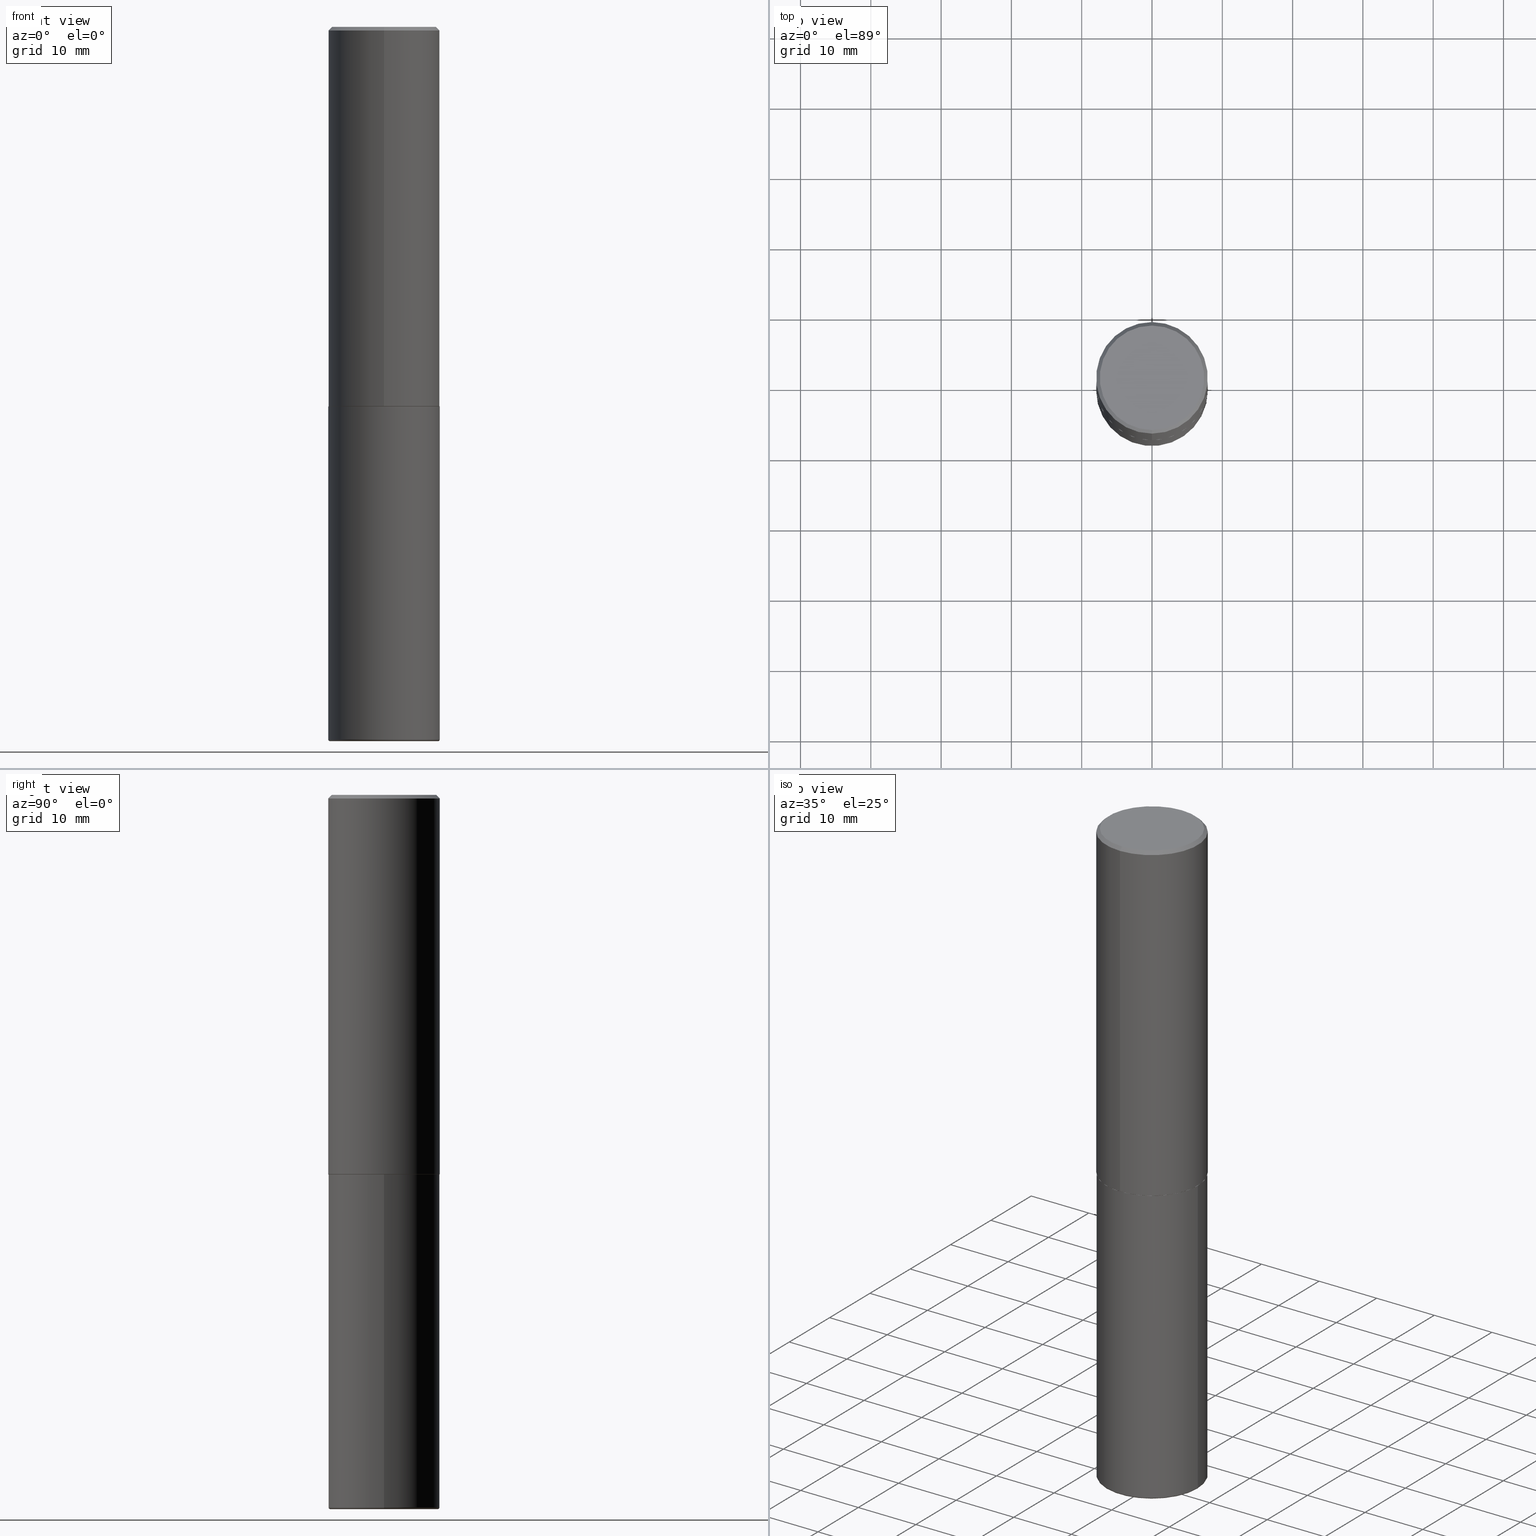
[diagram: canonical four-view strip — front | top / right | iso, engineering-drawing reading convention]
A machine part, canonical four-view strip (front | top / right | iso — engineering-drawing reading convention). The complete STEP part file that produces these views, byte-faithful:
ISO-10303-21;
HEADER;
FILE_DESCRIPTION (( 'STEP AP203' ),
    '1' );
FILE_NAME ('37577.STEP',
    '2024-03-02T04:44:09',
    ( '' ),
    ( '' ),
    'SwSTEP 2.0',
    'SolidWorks 2023',
    '' );
FILE_SCHEMA (( 'CONFIG_CONTROL_DESIGN' ));
ENDSEC;

DATA;
#1 = CIRCLE ( 'NONE', #194, 0.3025000000000000466 ) ;
#2 = APPROVAL_STATUS ( 'not_yet_approved' ) ;
#3 = ADVANCED_FACE ( 'NONE', ( #122 ), #296, .T. ) ;
#4 = FACE_OUTER_BOUND ( 'NONE', #10, .T. ) ;
#5 = PERSON_AND_ORGANIZATION ( #160, #276 ) ;
#6 = EDGE_CURVE ( 'NONE', #314, #68, #126, .T. ) ;
#7 = CIRCLE ( 'NONE', #289, 0.009999999999999825001 ) ;
#8 = AXIS2_PLACEMENT_3D ( 'NONE', #133, #207, #143 ) ;
#9 = APPROVAL_DATE_TIME ( #187, #101 ) ;
#10 = EDGE_LOOP ( 'NONE', ( #112, #359 ) ) ;
#11 = ORIENTED_EDGE ( 'NONE', *, *, #205, .T. ) ;
#12 = ADVANCED_FACE ( 'NONE', ( #352 ), #262, .T. ) ;
#13 = AXIS2_PLACEMENT_3D ( 'NONE', #30, #386, #213 ) ;
#14 = ORIENTED_EDGE ( 'NONE', *, *, #407, .T. ) ;
#15 = AXIS2_PLACEMENT_3D ( 'NONE', #305, #44, #166 ) ;
#16 = CARTESIAN_POINT ( 'NONE',  ( -2.075300644325887493E-15, -0.2924999999999999822, 1.030311686326234990E-15 ) ) ;
#17 = CARTESIAN_POINT ( 'NONE',  ( 2.213340621892763743E-15, 0.3114999999999925606, -2.125000000000000888 ) ) ;
#18 = EDGE_CURVE ( 'NONE', #373, #104, #183, .T. ) ;
#19 = DIRECTION ( 'NONE',  ( 5.024295867788576727E-15, 0.7071067811866224018, 0.7071067811864726327 ) ) ;
#20 = AXIS2_PLACEMENT_3D ( 'NONE', #368, #56, #301 ) ;
#21 = DIRECTION ( 'NONE',  ( -2.444852431726452894E-29, 3.492364022149836358E-15, 1.000000000000000000 ) ) ;
#22 = ORIENTED_EDGE ( 'NONE', *, *, #308, .F. ) ;
#23 = DIRECTION ( 'NONE',  ( 1.000000000000000000, -6.982962677686266711E-15, 4.876176775795936353E-29 ) ) ;
#24 = LINE ( 'NONE', #141, #409 ) ;
#25 = EDGE_LOOP ( 'NONE', ( #238, #58 ) ) ;
#26 = DIRECTION ( 'NONE',  ( -6.982962677686265922E-15, -1.000000000000000000, 3.496765431890253764E-15 ) ) ;
#27 = PLANE ( 'NONE',  #156 ) ;
#28 = PLANE ( 'NONE',  #90 ) ;
#29 = AXIS2_PLACEMENT_3D ( 'NONE', #190, #311, #184 ) ;
#30 = CARTESIAN_POINT ( 'NONE',  ( 4.889704863452922148E-31, -6.984728044299695791E-17, -0.02000000000000006981 ) ) ;
#31 = PERSON_AND_ORGANIZATION ( #160, #276 ) ;
#32 = FACE_OUTER_BOUND ( 'NONE', #362, .T. ) ;
#33 = COORDINATED_UNIVERSAL_TIME_OFFSET ( 5, 0, .BEHIND. ) ;
#34 = ORIENTED_EDGE ( 'NONE', *, *, #170, .F. ) ;
#35 = APPROVAL_STATUS ( 'not_yet_approved' ) ;
#36 = LOCAL_TIME ( 23, 44, 9.000000000000000000, #319 ) ;
#37 = VECTOR ( 'NONE', #215, 39.37007874015748143 ) ;
#38 = APPLICATION_CONTEXT ( 'configuration controlled 3d designs of mechanical parts and assemblies' ) ;
#39 = MANIFOLD_SOLID_BREP ( 'Body-Move/Copy2[2]', #285 ) ;
#40 = ORIENTED_EDGE ( 'NONE', *, *, #369, .T. ) ;
#41 = EDGE_LOOP ( 'NONE', ( #200, #211, #198, #34 ) ) ;
#42 = EDGE_LOOP ( 'NONE', ( #155, #340, #250, #282 ) ) ;
#43 = AXIS2_PLACEMENT_3D ( 'NONE', #270, #21, #138 ) ;
#44 = DIRECTION ( 'NONE',  ( -2.445468806185136597E-29, 3.491481338843145583E-15, 1.000000000000000000 ) ) ;
#45 = CARTESIAN_POINT ( 'NONE',  ( 9.757420536678694842E-29, -1.393101054198414910E-14, -3.989999999999999769 ) ) ;
#46 = DIRECTION ( 'NONE',  ( -2.445468806185136597E-29, 3.491481338843145583E-15, 1.000000000000000000 ) ) ;
#47 = DIRECTION ( 'NONE',  ( 1.000000000000000000, -6.982962677686268288E-15, 0.000000000000000000 ) ) ;
#48 = DIRECTION ( 'NONE',  ( -2.445468806185136597E-29, 3.491481338843145583E-15, 1.000000000000000000 ) ) ;
#49 = VECTOR ( 'NONE', #298, 39.37007874015748143 ) ;
#50 = EDGE_LOOP ( 'NONE', ( #87, #102 ) ) ;
#51 = DIRECTION ( 'NONE',  ( 6.982962677686265922E-15, 1.000000000000000000, -3.492364022149836358E-15 ) ) ;
#52 = DIRECTION ( 'NONE',  ( 4.937700262164541731E-15, 0.7071067811865442421, -0.7071067811865507924 ) ) ;
#53 = ORIENTED_EDGE ( 'NONE', *, *, #103, .T. ) ;
#54 = DIMENSIONAL_EXPONENTS ( 1.000000000000000000, 0.000000000000000000, 0.000000000000000000, 0.000000000000000000, 0.000000000000000000, 0.000000000000000000, 0.000000000000000000 ) ;
#55 = CC_DESIGN_PERSON_AND_ORGANIZATION_ASSIGNMENT ( #66, #281, ( #224 ) ) ;
#56 = DIRECTION ( 'NONE',  ( -2.444852431726452333E-29, 3.492364022149836358E-15, 1.000000000000000000 ) ) ;
#57 = CARTESIAN_POINT ( 'NONE',  ( 2.216893335571564642E-15, 0.3114999999999925606, -2.125000000000000888 ) ) ;
#58 = ORIENTED_EDGE ( 'NONE', *, *, #88, .T. ) ;
#59 = CARTESIAN_POINT ( 'NONE',  ( -2.150299018297948745E-46, 3.071607443834507134E-32, 8.795209847407834549E-18 ) ) ;
#60 = ADVANCED_FACE ( 'NONE', ( #4 ), #28, .T. ) ;
#61 = DIRECTION ( 'NONE',  ( -6.982962677686265922E-15, -1.000000000000000000, 3.507991003100177457E-15 ) ) ;
#62 = COORDINATED_UNIVERSAL_TIME_OFFSET ( 5, 0, .BEHIND. ) ;
#63 = CARTESIAN_POINT ( 'NONE',  ( -2.143905624303602824E-15, -0.3125000000000000555, -0.01999999999999897693 ) ) ;
#64 = EDGE_CURVE ( 'NONE', #267, #68, #146, .T. ) ;
#65 = AXIS2_PLACEMENT_3D ( 'NONE', #208, #136, #210 ) ;
#66 = PERSON_AND_ORGANIZATION ( #160, #276 ) ;
#67 = CC_DESIGN_APPROVAL ( #150, ( #318 ) ) ;
#68 = VERTEX_POINT ( 'NONE', #94 ) ;
#69 = VECTOR ( 'NONE', #19, 39.37007874015748143 ) ;
#70 = AXIS2_PLACEMENT_3D ( 'NONE', #235, #203, #398 ) ;
#71 = ORIENTED_EDGE ( 'NONE', *, *, #300, .T. ) ;
#72 = ORIENTED_EDGE ( 'NONE', *, *, #237, .F. ) ;
#73 = ORIENTED_EDGE ( 'NONE', *, *, #369, .F. ) ;
#74 = CARTESIAN_POINT ( 'NONE',  ( 0.000000000000000000, 0.000000000000000000, 0.000000000000000000 ) ) ;
#75 = AXIS2_PLACEMENT_3D ( 'NONE', #412, #241, #212 ) ;
#76 = CIRCLE ( 'NONE', #243, 0.3125000000000002776 ) ;
#77 = CARTESIAN_POINT ( 'NONE',  ( 9.781875224740545266E-29, -1.396592535537258075E-14, -3.999999999999999556 ) ) ;
#78 = DIRECTION ( 'NONE',  ( -2.445468806185136597E-29, 3.491481338843145583E-15, 1.000000000000000000 ) ) ;
#79 = LINE ( 'NONE', #17, #69 ) ;
#80 = ORIENTED_EDGE ( 'NONE', *, *, #265, .F. ) ;
#81 = PRODUCT_DEFINITION_SHAPE ( 'NONE', 'NONE',  #224 ) ;
#82 = AXIS2_PLACEMENT_3D ( 'NONE', #74, #401, #23 ) ;
#83 = DIRECTION ( 'NONE',  ( -6.982962677686265133E-15, -1.000000000000000000, 3.492364022149836358E-15 ) ) ;
#84 = CARTESIAN_POINT ( 'NONE',  ( 5.196621213143414147E-29, -7.419397845041682046E-15, -2.124999999999999556 ) ) ;
#85 = CALENDAR_DATE ( 2024, 1, 3 ) ;
#86 = DIRECTION ( 'NONE',  ( -6.982962677686266711E-15, -1.000000000000000000, 3.491481338843145583E-15 ) ) ;
#87 = ORIENTED_EDGE ( 'NONE', *, *, #145, .F. ) ;
#88 = EDGE_CURVE ( 'NONE', #373, #299, #96, .T. ) ;
#89 = DIRECTION ( 'NONE',  ( 7.105427357601001859E-15, 1.000000000000000000, -3.491481338843145583E-15 ) ) ;
#90 = AXIS2_PLACEMENT_3D ( 'NONE', #252, #387, #414 ) ;
#91 = APPROVAL_ROLE ( '' ) ;
#92 = DIRECTION ( 'NONE',  ( -2.444852431726452894E-29, 3.492364022149836358E-15, 1.000000000000000000 ) ) ;
#93 = EDGE_CURVE ( 'NONE', #299, #373, #240, .T. ) ;
#94 = CARTESIAN_POINT ( 'NONE',  ( -0.3125000000000000000, -8.454758144262601705E-15, -2.124999999999999556 ) ) ;
#95 =( NAMED_UNIT ( * ) SI_UNIT ( $, .STERADIAN. ) SOLID_ANGLE_UNIT ( ) );
#96 = CIRCLE ( 'NONE', #115, 0.2924999999999999822 ) ;
#97 = APPLICATION_CONTEXT ( 'configuration controlled 3d designs of mechanical parts and assemblies' ) ;
#98 = ADVANCED_FACE ( 'NONE', ( #151 ), #191, .T. ) ;
#99 = VERTEX_POINT ( 'NONE', #247 ) ;
#100 = CIRCLE ( 'NONE', #249, 0.3125000000000000555 ) ;
#101 = APPROVAL ( #2, 'UNSPECIFIED' ) ;
#102 = ORIENTED_EDGE ( 'NONE', *, *, #181, .F. ) ;
#103 = EDGE_CURVE ( 'NONE', #201, #314, #209, .T. ) ;
#104 = VERTEX_POINT ( 'NONE', #312 ) ;
#105 = CARTESIAN_POINT ( 'NONE',  ( 2.220446049250340297E-15, 0.3124999999999928391, -2.124000000000000554 ) ) ;
#106 = AXIS2_PLACEMENT_3D ( 'NONE', #84, #346, #378 ) ;
#107 = CARTESIAN_POINT ( 'NONE',  ( 0.3125000000000000000, -1.611318637876110745E-14, -3.989999999999999769 ) ) ;
#108 = LENGTH_MEASURE_WITH_UNIT ( LENGTH_MEASURE( 0.02539999999999999897 ), #268 );
#109 = DIRECTION ( 'NONE',  ( -2.445468806185136877E-29, 3.491481338843145188E-15, 1.000000000000000000 ) ) ;
#110 = DIRECTION ( 'NONE',  ( -2.445468806185136597E-29, 3.491481338843145583E-15, 1.000000000000000000 ) ) ;
#111 = CARTESIAN_POINT ( 'NONE',  ( 5.195311417418712329E-29, -7.421273547068401324E-15, -2.124999999999999556 ) ) ;
#112 = ORIENTED_EDGE ( 'NONE', *, *, #254, .F. ) ;
#113 = DIRECTION ( 'NONE',  ( 2.444852431726452333E-29, -3.492364022149836358E-15, -1.000000000000000000 ) ) ;
#114 = CARTESIAN_POINT ( 'NONE',  ( 0.3025000000000000466, -1.607827156537267738E-14, -3.999999999999999556 ) ) ;
#115 = AXIS2_PLACEMENT_3D ( 'NONE', #119, #246, #382 ) ;
#116 = ORIENTED_EDGE ( 'NONE', *, *, #291, .F. ) ;
#117 = PERSON_AND_ORGANIZATION ( #160, #276 ) ;
#118 = DIRECTION ( 'NONE',  ( -1.000000000000000000, 6.982962677686265922E-15, -4.876176775795935793E-29 ) ) ;
#119 = CARTESIAN_POINT ( 'NONE',  ( -2.150299018297948745E-46, 3.071607443834507134E-32, 8.795209847407834549E-18 ) ) ;
#120 = CARTESIAN_POINT ( 'NONE',  ( 5.195311417418712329E-29, -7.421273547068401324E-15, -2.124999999999999556 ) ) ;
#121 = DATE_TIME_ROLE ( 'classification_date' ) ;
#122 = FACE_OUTER_BOUND ( 'NONE', #175, .T. ) ;
#123 = AXIS2_PLACEMENT_3D ( 'NONE', #337, #78, #306 ) ;
#124 = SECURITY_CLASSIFICATION_LEVEL ( 'unclassified' ) ;
#125 = ADVANCED_FACE ( 'NONE', ( #32 ), #255, .T. ) ;
#126 = LINE ( 'NONE', #343, #37 ) ;
#127 = AXIS2_PLACEMENT_3D ( 'NONE', #111, #178, #294 ) ;
#128 = ORIENTED_EDGE ( 'NONE', *, *, #64, .T. ) ;
#129 = ORIENTED_EDGE ( 'NONE', *, *, #6, .T. ) ;
#130 = AXIS2_PLACEMENT_3D ( 'NONE', #333, #376, #83 ) ;
#131 = VECTOR ( 'NONE', #375, 39.37007874015748143 ) ;
#132 = ORIENTED_EDGE ( 'NONE', *, *, #145, .T. ) ;
#133 = CARTESIAN_POINT ( 'NONE',  ( 0.000000000000000000, 0.000000000000000000, 0.000000000000000000 ) ) ;
#134 = DIRECTION ( 'NONE',  ( 1.000000000000000000, -6.982962677686261189E-15, 0.000000000000000000 ) ) ;
#135 = DIRECTION ( 'NONE',  ( 1.000000000000000000, -6.982962677686265922E-15, 4.883557194083112340E-29 ) ) ;
#136 = DIRECTION ( 'NONE',  ( -2.444852431726452894E-29, 3.492364022149836358E-15, 1.000000000000000000 ) ) ;
#137 = CYLINDRICAL_SURFACE ( 'NONE', #8, 0.3125000000000001665 ) ;
#138 = DIRECTION ( 'NONE',  ( -6.982962677686265922E-15, -1.000000000000000000, 3.496765431890253764E-15 ) ) ;
#139 = VERTEX_POINT ( 'NONE', #182 ) ;
#140 = CARTESIAN_POINT ( 'NONE',  ( -2.175192874099219874E-15, -0.3115000000000074376, -2.124999999999998668 ) ) ;
#141 = CARTESIAN_POINT ( 'NONE',  ( 2.182175836776958741E-15, 0.3124999999999999445, -0.02000000000000116268 ) ) ;
#142 = VERTEX_POINT ( 'NONE', #107 ) ;
#143 = DIRECTION ( 'NONE',  ( -6.982962677686265133E-15, -1.000000000000000000, 3.492364022149836358E-15 ) ) ;
#144 = CARTESIAN_POINT ( 'NONE',  ( 5.196621213143414147E-29, -7.419397845041682046E-15, -2.124999999999999556 ) ) ;
#145 = EDGE_CURVE ( 'NONE', #139, #223, #347, .T. ) ;
#146 = CIRCLE ( 'NONE', #106, 0.3125000000000000000 ) ;
#147 = VERTEX_POINT ( 'NONE', #230 ) ;
#148 = TOROIDAL_SURFACE ( 'NONE', #158, 0.3025000000000000466, 0.009999999999999825001 ) ;
#149 = PERSON_AND_ORGANIZATION_ROLE ( 'creator' ) ;
#150 = APPROVAL ( #279, 'UNSPECIFIED' ) ;
#151 = FACE_OUTER_BOUND ( 'NONE', #42, .T. ) ;
#152 = APPROVAL_DATE_TIME ( #411, #150 ) ;
#153 = CARTESIAN_POINT ( 'NONE',  ( 5.195311417418712329E-29, -7.421273547068401324E-15, -2.124999999999999556 ) ) ;
#154 = DATE_AND_TIME ( #85, #231 ) ;
#155 = ORIENTED_EDGE ( 'NONE', *, *, #18, .F. ) ;
#156 = AXIS2_PLACEMENT_3D ( 'NONE', #144, #274, #118 ) ;
#157 = APPROVAL_ROLE ( '' ) ;
#158 = AXIS2_PLACEMENT_3D ( 'NONE', #264, #110, #135 ) ;
#159 = CLOSED_SHELL ( 'NONE', ( #400, #325, #228, #351, #413, #60 ) ) ;
#160 = PERSON ( 'UNSPECIFIED', 'UNSPECIFIED', 'UNSPECIFIED', ('UNSPECIFIED'), ('UNSPECIFIED'), ('UNSPECIFIED') ) ;
#161 = EDGE_CURVE ( 'NONE', #314, #142, #100, .T. ) ;
#162 = EDGE_LOOP ( 'NONE', ( #128, #164 ) ) ;
#163 = ORIENTED_EDGE ( 'NONE', *, *, #6, .F. ) ;
#164 = ORIENTED_EDGE ( 'NONE', *, *, #222, .T. ) ;
#165 = VECTOR ( 'NONE', #109, 39.37007874015748143 ) ;
#166 = DIRECTION ( 'NONE',  ( 1.000000000000000000, -6.982962677686266711E-15, 4.876176775795936353E-29 ) ) ;
#167 = CARTESIAN_POINT ( 'NONE',  ( 5.195311417418712329E-29, -7.421273547068401324E-15, -2.124999999999999556 ) ) ;
#168 = DIRECTION ( 'NONE',  ( 1.000000000000000000, -6.982962677686268288E-15, 0.000000000000000000 ) ) ;
#169 = FACE_OUTER_BOUND ( 'NONE', #162, .T. ) ;
#170 = EDGE_CURVE ( 'NONE', #147, #104, #172, .T. ) ;
#171 = LINE ( 'NONE', #140, #323 ) ;
#172 = CIRCLE ( 'NONE', #75, 0.3125000000000000000 ) ;
#173 = CARTESIAN_POINT ( 'NONE',  ( -0.3125000000000000000, -1.171056449273383602E-14, -3.989999999999999769 ) ) ;
#174 = MANIFOLD_SOLID_BREP ( 'Body-Move/Copy2[1]', #159 ) ;
#175 = EDGE_LOOP ( 'NONE', ( #392, #286, #334, #80 ) ) ;
#176 = UNCERTAINTY_MEASURE_WITH_UNIT (LENGTH_MEASURE( 1.000000000000000082E-05 ), #233, 'distance_accuracy_value', 'NONE');
#177 = DIRECTION ( 'NONE',  ( -2.444852431726452894E-29, 3.492364022149836358E-15, 1.000000000000000000 ) ) ;
#178 = DIRECTION ( 'NONE',  ( -2.444852431726452894E-29, 3.492364022149836358E-15, 1.000000000000000000 ) ) ;
#179 = ORIENTED_EDGE ( 'NONE', *, *, #328, .F. ) ;
#180 = CYLINDRICAL_SURFACE ( 'NONE', #15, 0.3125000000000000000 ) ;
#181 = EDGE_CURVE ( 'NONE', #223, #139, #321, .T. ) ;
#182 = CARTESIAN_POINT ( 'NONE',  ( -2.175192874099219874E-15, -0.3115000000000074376, -2.124999999999998668 ) ) ;
#183 = LINE ( 'NONE', #63, #335 ) ;
#184 = DIRECTION ( 'NONE',  ( 1.000000000000000000, 0.000000000000000000, 0.000000000000000000 ) ) ;
#185 = DIRECTION ( 'NONE',  ( -2.444852431726452894E-29, 3.492364022149836358E-15, 1.000000000000000000 ) ) ;
#186 = DIRECTION ( 'NONE',  ( -1.000000000000000000, 7.105427357601049190E-15, 0.000000000000000000 ) ) ;
#187 = DATE_AND_TIME ( #350, #349 ) ;
#188 = DIRECTION ( 'NONE',  ( -4.851104656540957964E-15, -0.7071067811865491270, -0.7071067811865459074 ) ) ;
#189 = CC_DESIGN_DATE_AND_TIME_ASSIGNMENT ( #154, #248, ( #224 ) ) ;
#190 = CARTESIAN_POINT ( 'NONE',  ( 0.000000000000000000, 0.000000000000000000, 0.000000000000000000 ) ) ;
#191 = CONICAL_SURFACE ( 'NONE', #327, 0.3125000000000000000, 0.7853981633974471688 ) ;
#192 = APPROVAL_ROLE ( '' ) ;
#193 = CIRCLE ( 'NONE', #356, 0.3125000000000000555 ) ;
#194 = AXIS2_PLACEMENT_3D ( 'NONE', #245, #48, #332 ) ;
#195 = VERTEX_POINT ( 'NONE', #114 ) ;
#196 = CC_DESIGN_APPROVAL ( #199, ( #224 ) ) ;
#197 = ADVANCED_FACE ( 'NONE', ( #367 ), #372, .T. ) ;
#198 = ORIENTED_EDGE ( 'NONE', *, *, #328, .T. ) ;
#199 = APPROVAL ( #35, 'UNSPECIFIED' ) ;
#200 = ORIENTED_EDGE ( 'NONE', *, *, #315, .F. ) ;
#201 = VERTEX_POINT ( 'NONE', #236 ) ;
#202 = AXIS2_PLACEMENT_3D ( 'NONE', #59, #185, #309 ) ;
#203 = DIRECTION ( 'NONE',  ( -2.445468806185136597E-29, 3.491481338843145583E-15, 1.000000000000000000 ) ) ;
#204 = FACE_OUTER_BOUND ( 'NONE', #50, .T. ) ;
#205 = EDGE_CURVE ( 'NONE', #223, #348, #79, .T. ) ;
#206 = DIRECTION ( 'NONE',  ( -2.445468806185136597E-29, 3.491481338843145583E-15, 1.000000000000000000 ) ) ;
#207 = DIRECTION ( 'NONE',  ( -2.444852431726452894E-29, 3.492364022149836358E-15, 1.000000000000000000 ) ) ;
#208 = CARTESIAN_POINT ( 'NONE',  ( 4.889704863452922148E-31, -6.984728044299695791E-17, -0.02000000000000006981 ) ) ;
#209 = CIRCLE ( 'NONE', #393, 0.009999999999999825001 ) ;
#210 = DIRECTION ( 'NONE',  ( -6.982962677686265133E-15, -1.000000000000000000, 3.496765431890256920E-15 ) ) ;
#211 = ORIENTED_EDGE ( 'NONE', *, *, #320, .T. ) ;
#212 = DIRECTION ( 'NONE',  ( -6.982962677686265133E-15, -1.000000000000000000, 3.496765431890256920E-15 ) ) ;
#213 = DIRECTION ( 'NONE',  ( 6.982962677686265133E-15, 1.000000000000000000, -3.496765431890256920E-15 ) ) ;
#214 = PERSON_AND_ORGANIZATION ( #160, #276 ) ;
#215 = DIRECTION ( 'NONE',  ( -2.445468806185136877E-29, 3.491481338843145188E-15, 1.000000000000000000 ) ) ;
#216 = CARTESIAN_POINT ( 'NONE',  ( 4.889704863452922148E-31, -6.984728044299695791E-17, -0.02000000000000006981 ) ) ;
#217 = COORDINATED_UNIVERSAL_TIME_OFFSET ( 5, 0, .BEHIND. ) ;
#218 = ORIENTED_EDGE ( 'NONE', *, *, #222, .F. ) ;
#219 = APPLICATION_PROTOCOL_DEFINITION ( 'international standard', 'config_control_design', 1994, #38 ) ;
#220 = CALENDAR_DATE ( 2024, 1, 3 ) ;
#221 = CIRCLE ( 'NONE', #43, 0.3125000000000002776 ) ;
#222 = EDGE_CURVE ( 'NONE', #68, #267, #364, .T. ) ;
#223 = VERTEX_POINT ( 'NONE', #57 ) ;
#224 = PRODUCT_DEFINITION ( 'UNKNOWN', '', #318, #304 ) ;
#225 = ORIENTED_EDGE ( 'NONE', *, *, #308, .T. ) ;
#226 = EDGE_LOOP ( 'NONE', ( #14, #129, #258, #22 ) ) ;
#227 = FACE_OUTER_BOUND ( 'NONE', #226, .T. ) ;
#228 = ADVANCED_FACE ( 'NONE', ( #169 ), #27, .F. ) ;
#229 = CARTESIAN_POINT ( 'NONE',  ( 9.757420536678694842E-29, -1.393101054198414910E-14, -3.989999999999999769 ) ) ;
#230 = CARTESIAN_POINT ( 'NONE',  ( 2.182175836776958741E-15, 0.3124999999999999445, -0.02000000000000116268 ) ) ;
#231 = LOCAL_TIME ( 23, 44, 9.000000000000000000, #33 ) ;
#232 = CC_DESIGN_DATE_AND_TIME_ASSIGNMENT ( #415, #121, ( #251 ) ) ;
#233 =( CONVERSION_BASED_UNIT ( 'INCH', #108 ) LENGTH_UNIT ( ) NAMED_UNIT ( #54 ) );
#234 = LINE ( 'NONE', #370, #49 ) ;
#235 = CARTESIAN_POINT ( 'NONE',  ( 9.757420536678694842E-29, -1.393101054198414910E-14, -3.989999999999999769 ) ) ;
#236 = CARTESIAN_POINT ( 'NONE',  ( -0.3025000000000000466, -1.176354903621605689E-14, -3.999999999999999556 ) ) ;
#237 = EDGE_CURVE ( 'NONE', #104, #147, #374, .T. ) ;
#238 = ORIENTED_EDGE ( 'NONE', *, *, #93, .T. ) ;
#239 = CARTESIAN_POINT ( 'NONE',  ( 5.192866564986985411E-29, -7.417781183046251262E-15, -2.123999999999999666 ) ) ;
#240 = CIRCLE ( 'NONE', #202, 0.2924999999999999822 ) ;
#241 = DIRECTION ( 'NONE',  ( -2.444852431726452894E-29, 3.492364022149836358E-15, 1.000000000000000000 ) ) ;
#242 = ORIENTED_EDGE ( 'NONE', *, *, #315, .T. ) ;
#243 = AXIS2_PLACEMENT_3D ( 'NONE', #239, #177, #26 ) ;
#244 = PERSON_AND_ORGANIZATION ( #160, #276 ) ;
#245 = CARTESIAN_POINT ( 'NONE',  ( 9.781875224740545266E-29, -1.396592535537258075E-14, -3.999999999999999556 ) ) ;
#246 = DIRECTION ( 'NONE',  ( -2.444852431726452894E-29, 3.492364022149836358E-15, 1.000000000000000000 ) ) ;
#247 = CARTESIAN_POINT ( 'NONE',  ( -2.182175836776908254E-15, -0.3125000000000077161, -2.123999999999998334 ) ) ;
#248 = DATE_TIME_ROLE ( 'creation_date' ) ;
#249 = AXIS2_PLACEMENT_3D ( 'NONE', #45, #330, #47 ) ;
#250 = ORIENTED_EDGE ( 'NONE', *, *, #265, .T. ) ;
#251 = SECURITY_CLASSIFICATION ( '', '', #124 ) ;
#252 = CARTESIAN_POINT ( 'NONE',  ( 1.482687160976392448E-28, -6.741203388657175081E-15, -4.000000000000000000 ) ) ;
#253 = APPROVAL_DATE_TIME ( #353, #199 ) ;
#254 = EDGE_CURVE ( 'NONE', #195, #201, #1, .T. ) ;
#255 = CONICAL_SURFACE ( 'NONE', #355, 0.3114999999999999991, 0.7853981633975507526 ) ;
#256 = APPROVAL_PERSON_ORGANIZATION ( #31, #199, #157 ) ;
#257 = ORIENTED_EDGE ( 'NONE', *, *, #320, .F. ) ;
#258 = ORIENTED_EDGE ( 'NONE', *, *, #64, .F. ) ;
#259 = ORIENTED_EDGE ( 'NONE', *, *, #254, .T. ) ;
#260 = FACE_OUTER_BOUND ( 'NONE', #397, .T. ) ;
#261 = DIRECTION ( 'NONE',  ( -2.444852431726452894E-29, 3.492364022149836358E-15, 1.000000000000000000 ) ) ;
#262 = CONICAL_SURFACE ( 'NONE', #385, 0.3114999999999999991, 0.7853981633975507526 ) ;
#263 = LINE ( 'NONE', #302, #165 ) ;
#264 = CARTESIAN_POINT ( 'NONE',  ( 9.757420536678694842E-29, -1.393101054198414910E-14, -3.989999999999999769 ) ) ;
#265 = EDGE_CURVE ( 'NONE', #299, #147, #24, .T. ) ;
#266 = FACE_OUTER_BOUND ( 'NONE', #360, .T. ) ;
#267 = VERTEX_POINT ( 'NONE', #381 ) ;
#268 =( LENGTH_UNIT ( ) NAMED_UNIT ( * ) SI_UNIT ( $, .METRE. ) );
#269 = CC_DESIGN_PERSON_AND_ORGANIZATION_ASSIGNMENT ( #244, #380, ( #318 ) ) ;
#270 = CARTESIAN_POINT ( 'NONE',  ( 5.192866564986985411E-29, -7.417781183046251262E-15, -2.123999999999999666 ) ) ;
#271 = ORIENTED_EDGE ( 'NONE', *, *, #103, .F. ) ;
#272 = CALENDAR_DATE ( 2024, 1, 3 ) ;
#273 = TOROIDAL_SURFACE ( 'NONE', #70, 0.3025000000000000466, 0.009999999999999825001 ) ;
#274 = DIRECTION ( 'NONE',  ( 2.438088387897960049E-29, -3.491481338843145188E-15, -1.000000000000000000 ) ) ;
#275 = ORIENTED_EDGE ( 'NONE', *, *, #161, .T. ) ;
#276 = ORGANIZATION ( 'UNSPECIFIED', 'UNSPECIFIED', '' ) ;
#277 = PERSON_AND_ORGANIZATION ( #160, #276 ) ;
#278 = DIRECTION ( 'NONE',  ( 2.444852431726452894E-29, -3.492364022149836358E-15, -1.000000000000000000 ) ) ;
#279 = APPROVAL_STATUS ( 'not_yet_approved' ) ;
#280 = DIRECTION ( 'NONE',  ( -2.444852431726452894E-29, 3.492364022149836358E-15, 1.000000000000000000 ) ) ;
#281 = PERSON_AND_ORGANIZATION_ROLE ( 'creator' ) ;
#282 = ORIENTED_EDGE ( 'NONE', *, *, #170, .T. ) ;
#283 = APPROVAL_PERSON_ORGANIZATION ( #384, #101, #91 ) ;
#284 = COORDINATED_UNIVERSAL_TIME_OFFSET ( 5, 0, .BEHIND. ) ;
#285 = CLOSED_SHELL ( 'NONE', ( #125, #197, #3, #98, #391, #12, #345, #357 ) ) ;
#286 = ORIENTED_EDGE ( 'NONE', *, *, #18, .T. ) ;
#287 = SHAPE_DEFINITION_REPRESENTATION ( #81, #410 ) ;
#288 = EDGE_LOOP ( 'NONE', ( #303, #242, #72, #179 ) ) ;
#289 = AXIS2_PLACEMENT_3D ( 'NONE', #402, #86, #134 ) ;
#290 = ORIENTED_EDGE ( 'NONE', *, *, #181, .T. ) ;
#291 = EDGE_CURVE ( 'NONE', #195, #142, #7, .T. ) ;
#292 = CC_DESIGN_SECURITY_CLASSIFICATION ( #251, ( #318 ) ) ;
#293 = DIRECTION ( 'NONE',  ( -4.937700262165053702E-15, -0.7071067811866175168, 0.7071067811864775177 ) ) ;
#294 = DIRECTION ( 'NONE',  ( -6.982962677686265922E-15, -1.000000000000000000, 3.507991003100177457E-15 ) ) ;
#295 = DIRECTION ( 'NONE',  ( 1.000000000000000000, -6.982962677686265922E-15, 0.000000000000000000 ) ) ;
#296 = CONICAL_SURFACE ( 'NONE', #13, 0.3125000000000000000, 0.7853981633974471688 ) ;
#297 =( NAMED_UNIT ( * ) PLANE_ANGLE_UNIT ( ) SI_UNIT ( $, .RADIAN. ) );
#298 = DIRECTION ( 'NONE',  ( -2.444852431726452614E-29, 3.492364022149836358E-15, 1.000000000000000000 ) ) ;
#299 = VERTEX_POINT ( 'NONE', #399 ) ;
#300 = EDGE_CURVE ( 'NONE', #201, #195, #389, .T. ) ;
#301 = DIRECTION ( 'NONE',  ( -6.982962677686265922E-15, -1.000000000000000000, 3.492364022149836358E-15 ) ) ;
#302 = CARTESIAN_POINT ( 'NONE',  ( 0.3125000000000000000, -2.182175836776958347E-15, 1.523805242436230075E-29 ) ) ;
#303 = ORIENTED_EDGE ( 'NONE', *, *, #379, .T. ) ;
#304 = DESIGN_CONTEXT ( 'detailed design', #97, 'design' ) ;
#305 = CARTESIAN_POINT ( 'NONE',  ( 0.000000000000000000, 0.000000000000000000, 0.000000000000000000 ) ) ;
#306 = DIRECTION ( 'NONE',  ( 1.000000000000000000, -6.982962677686265133E-15, 0.000000000000000000 ) ) ;
#307 = ORIENTED_EDGE ( 'NONE', *, *, #407, .F. ) ;
#308 = EDGE_CURVE ( 'NONE', #142, #267, #263, .T. ) ;
#309 = DIRECTION ( 'NONE',  ( -6.982962677686265133E-15, -1.000000000000000000, 3.492364022149836753E-15 ) ) ;
#310 = APPROVAL_PERSON_ORGANIZATION ( #214, #150, #192 ) ;
#311 = DIRECTION ( 'NONE',  ( 0.000000000000000000, 0.000000000000000000, 1.000000000000000000 ) ) ;
#312 = CARTESIAN_POINT ( 'NONE',  ( -2.143905624303602824E-15, -0.3125000000000000555, -0.01999999999999897693 ) ) ;
#313 = MECHANICAL_CONTEXT ( 'NONE', #38, 'mechanical' ) ;
#314 = VERTEX_POINT ( 'NONE', #173 ) ;
#315 = EDGE_CURVE ( 'NONE', #348, #147, #234, .T. ) ;
#316 = PERSON_AND_ORGANIZATION_ROLE ( 'design_owner' ) ;
#317 = AXIS2_PLACEMENT_3D ( 'NONE', #167, #261, #342 ) ;
#318 = PRODUCT_DEFINITION_FORMATION_WITH_SPECIFIED_SOURCE ( 'ANY', '', #338, .NOT_KNOWN. ) ;
#319 = COORDINATED_UNIVERSAL_TIME_OFFSET ( 5, 0, .BEHIND. ) ;
#320 = EDGE_CURVE ( 'NONE', #348, #99, #221, .T. ) ;
#321 = CIRCLE ( 'NONE', #127, 0.3114999999999999991 ) ;
#322 = EDGE_LOOP ( 'NONE', ( #405, #290, #40, #257 ) ) ;
#323 = VECTOR ( 'NONE', #293, 39.37007874015748143 ) ;
#324 = EDGE_LOOP ( 'NONE', ( #163, #275, #225, #218 ) ) ;
#325 = ADVANCED_FACE ( 'NONE', ( #266 ), #273, .T. ) ;
#326 = ORIENTED_EDGE ( 'NONE', *, *, #161, .F. ) ;
#327 = AXIS2_PLACEMENT_3D ( 'NONE', #216, #278, #416 ) ;
#328 = EDGE_CURVE ( 'NONE', #99, #104, #406, .T. ) ;
#329 = PLANE ( 'NONE',  #20 ) ;
#330 = DIRECTION ( 'NONE',  ( -2.445468806185136597E-29, 3.491481338843145583E-15, 1.000000000000000000 ) ) ;
#331 = FACE_OUTER_BOUND ( 'NONE', #324, .T. ) ;
#332 = DIRECTION ( 'NONE',  ( 1.000000000000000000, -6.982962677686265922E-15, 0.000000000000000000 ) ) ;
#333 = CARTESIAN_POINT ( 'NONE',  ( 0.000000000000000000, 0.000000000000000000, 0.000000000000000000 ) ) ;
#334 = ORIENTED_EDGE ( 'NONE', *, *, #237, .T. ) ;
#335 = VECTOR ( 'NONE', #188, 39.37007874015748143 ) ;
#336 = FACE_OUTER_BOUND ( 'NONE', #25, .T. ) ;
#337 = CARTESIAN_POINT ( 'NONE',  ( 5.196621213143414147E-29, -7.419397845041682046E-15, -2.124999999999999556 ) ) ;
#338 = PRODUCT ( '37577', '37577', '', ( #313 ) ) ;
#339 = AXIS2_PLACEMENT_3D ( 'NONE', #365, #113, #51 ) ;
#340 = ORIENTED_EDGE ( 'NONE', *, *, #93, .F. ) ;
#341 = CARTESIAN_POINT ( 'NONE',  ( -2.182175836776959136E-15, -0.3125000000000001665, 1.091363756921824478E-15 ) ) ;
#342 = DIRECTION ( 'NONE',  ( -6.982962677686265922E-15, -1.000000000000000000, 3.507991003100177457E-15 ) ) ;
#343 = CARTESIAN_POINT ( 'NONE',  ( -0.3125000000000000000, 2.220446049250313081E-15, -1.537167215704658232E-29 ) ) ;
#344 = CALENDAR_DATE ( 2024, 1, 3 ) ;
#345 = ADVANCED_FACE ( 'NONE', ( #204 ), #329, .F. ) ;
#346 = DIRECTION ( 'NONE',  ( -2.445468806185136597E-29, 3.491481338843145583E-15, 1.000000000000000000 ) ) ;
#347 = CIRCLE ( 'NONE', #317, 0.3114999999999999991 ) ;
#348 = VERTEX_POINT ( 'NONE', #105 ) ;
#349 = LOCAL_TIME ( 23, 44, 9.000000000000000000, #217 ) ;
#350 = CALENDAR_DATE ( 2024, 1, 3 ) ;
#351 = ADVANCED_FACE ( 'NONE', ( #331 ), #180, .T. ) ;
#352 = FACE_OUTER_BOUND ( 'NONE', #322, .T. ) ;
#353 = DATE_AND_TIME ( #220, #366 ) ;
#354 = CC_DESIGN_PERSON_AND_ORGANIZATION_ASSIGNMENT ( #117, #149, ( #318 ) ) ;
#355 = AXIS2_PLACEMENT_3D ( 'NONE', #153, #280, #418 ) ;
#356 = AXIS2_PLACEMENT_3D ( 'NONE', #229, #46, #168 ) ;
#357 = ADVANCED_FACE ( 'NONE', ( #336 ), #404, .F. ) ;
#358 = AXIS2_PLACEMENT_3D ( 'NONE', #77, #206, #295 ) ;
#359 = ORIENTED_EDGE ( 'NONE', *, *, #300, .F. ) ;
#360 = EDGE_LOOP ( 'NONE', ( #259, #53, #307, #116 ) ) ;
#361 = CC_DESIGN_PERSON_AND_ORGANIZATION_ASSIGNMENT ( #5, #316, ( #338 ) ) ;
#362 = EDGE_LOOP ( 'NONE', ( #132, #11, #408, #73 ) ) ;
#363 = CYLINDRICAL_SURFACE ( 'NONE', #82, 0.3125000000000000000 ) ;
#364 = CIRCLE ( 'NONE', #123, 0.3125000000000000000 ) ;
#365 = CARTESIAN_POINT ( 'NONE',  ( 2.042516583223232540E-15, 0.2924999999999999822, -1.017118871555123169E-15 ) ) ;
#366 = LOCAL_TIME ( 23, 44, 9.000000000000000000, #284 ) ;
#367 = FACE_OUTER_BOUND ( 'NONE', #288, .T. ) ;
#368 = CARTESIAN_POINT ( 'NONE',  ( 5.195311417418712329E-29, -7.421273547068401324E-15, -2.124999999999999556 ) ) ;
#369 = EDGE_CURVE ( 'NONE', #139, #99, #171, .T. ) ;
#370 = CARTESIAN_POINT ( 'NONE',  ( 2.220446049250313475E-15, 0.3125000000000001665, -1.091363756921824478E-15 ) ) ;
#371 = FACE_OUTER_BOUND ( 'NONE', #41, .T. ) ;
#372 = CYLINDRICAL_SURFACE ( 'NONE', #130, 0.3125000000000001665 ) ;
#373 = VERTEX_POINT ( 'NONE', #16 ) ;
#374 = CIRCLE ( 'NONE', #65, 0.3125000000000000000 ) ;
#375 = DIRECTION ( 'NONE',  ( -2.444852431726452614E-29, 3.492364022149836358E-15, 1.000000000000000000 ) ) ;
#376 = DIRECTION ( 'NONE',  ( -2.444852431726452894E-29, 3.492364022149836358E-15, 1.000000000000000000 ) ) ;
#377 = LOCAL_TIME ( 23, 44, 9.000000000000000000, #62 ) ;
#378 = DIRECTION ( 'NONE',  ( 1.000000000000000000, -6.982962677686265133E-15, 0.000000000000000000 ) ) ;
#379 = EDGE_CURVE ( 'NONE', #99, #348, #76, .T. ) ;
#380 = PERSON_AND_ORGANIZATION_ROLE ( 'design_supplier' ) ;
#381 = CARTESIAN_POINT ( 'NONE',  ( 0.3125000000000000000, -9.601573681818640393E-15, -2.124999999999999556 ) ) ;
#382 = DIRECTION ( 'NONE',  ( -6.982962677686265133E-15, -1.000000000000000000, 3.492364022149836753E-15 ) ) ;
#383 = CARTESIAN_POINT ( 'NONE',  ( -0.3025000000000000466, -1.178161876630984610E-14, -3.989999999999999769 ) ) ;
#384 = PERSON_AND_ORGANIZATION ( #160, #276 ) ;
#385 = AXIS2_PLACEMENT_3D ( 'NONE', #120, #92, #61 ) ;
#386 = DIRECTION ( 'NONE',  ( 2.444852431726452894E-29, -3.492364022149836358E-15, -1.000000000000000000 ) ) ;
#387 = DIRECTION ( 'NONE',  ( 2.438088387897960049E-29, -3.491481338843145188E-15, -1.000000000000000000 ) ) ;
#388 = APPLICATION_PROTOCOL_DEFINITION ( 'international standard', 'config_control_design', 1994, #97 ) ;
#389 = CIRCLE ( 'NONE', #358, 0.3025000000000000466 ) ;
#390 =( GEOMETRIC_REPRESENTATION_CONTEXT ( 3 ) GLOBAL_UNCERTAINTY_ASSIGNED_CONTEXT ( ( #176 ) ) GLOBAL_UNIT_ASSIGNED_CONTEXT ( ( #233, #297, #95 ) ) REPRESENTATION_CONTEXT ( 'NONE', 'WORKASPACE' ) );
#391 = ADVANCED_FACE ( 'NONE', ( #371 ), #137, .T. ) ;
#392 = ORIENTED_EDGE ( 'NONE', *, *, #88, .F. ) ;
#393 = AXIS2_PLACEMENT_3D ( 'NONE', #383, #89, #186 ) ;
#394 = ORIENTED_EDGE ( 'NONE', *, *, #291, .T. ) ;
#395 = CC_DESIGN_APPROVAL ( #101, ( #251 ) ) ;
#396 = PRODUCT_RELATED_PRODUCT_CATEGORY ( 'detail', '', ( #338 ) ) ;
#397 = EDGE_LOOP ( 'NONE', ( #271, #71, #394, #326 ) ) ;
#398 = DIRECTION ( 'NONE',  ( 1.000000000000000000, -6.982962677686265922E-15, 4.883557194083112340E-29 ) ) ;
#399 = CARTESIAN_POINT ( 'NONE',  ( 2.112346210000095838E-15, 0.2924999999999999822, -1.012721266631419361E-15 ) ) ;
#400 = ADVANCED_FACE ( 'NONE', ( #227 ), #363, .T. ) ;
#401 = DIRECTION ( 'NONE',  ( -2.445468806185136597E-29, 3.491481338843145583E-15, 1.000000000000000000 ) ) ;
#402 = CARTESIAN_POINT ( 'NONE',  ( 0.3025000000000000466, -1.604335675198424415E-14, -3.989999999999999769 ) ) ;
#403 = CC_DESIGN_PERSON_AND_ORGANIZATION_ASSIGNMENT ( #277, #417, ( #251 ) ) ;
#404 = PLANE ( 'NONE',  #339 ) ;
#405 = ORIENTED_EDGE ( 'NONE', *, *, #205, .F. ) ;
#406 = LINE ( 'NONE', #341, #131 ) ;
#407 = EDGE_CURVE ( 'NONE', #142, #314, #193, .T. ) ;
#408 = ORIENTED_EDGE ( 'NONE', *, *, #379, .F. ) ;
#409 = VECTOR ( 'NONE', #52, 39.37007874015748143 ) ;
#410 = ADVANCED_BREP_SHAPE_REPRESENTATION ( '37577', ( #174, #39, #29 ), #390 ) ;
#411 = DATE_AND_TIME ( #272, #36 ) ;
#412 = CARTESIAN_POINT ( 'NONE',  ( 4.889704863452922148E-31, -6.984728044299695791E-17, -0.02000000000000006981 ) ) ;
#413 = ADVANCED_FACE ( 'NONE', ( #260 ), #148, .T. ) ;
#414 = DIRECTION ( 'NONE',  ( -1.000000000000000000, 6.982962677686265922E-15, -4.876176775795935793E-29 ) ) ;
#415 = DATE_AND_TIME ( #344, #377 ) ;
#416 = DIRECTION ( 'NONE',  ( 6.982962677686265133E-15, 1.000000000000000000, -3.496765431890256920E-15 ) ) ;
#417 = PERSON_AND_ORGANIZATION_ROLE ( 'classification_officer' ) ;
#418 = DIRECTION ( 'NONE',  ( -6.982962677686265922E-15, -1.000000000000000000, 3.507991003100177457E-15 ) ) ;
ENDSEC;
END-ISO-10303-21;
